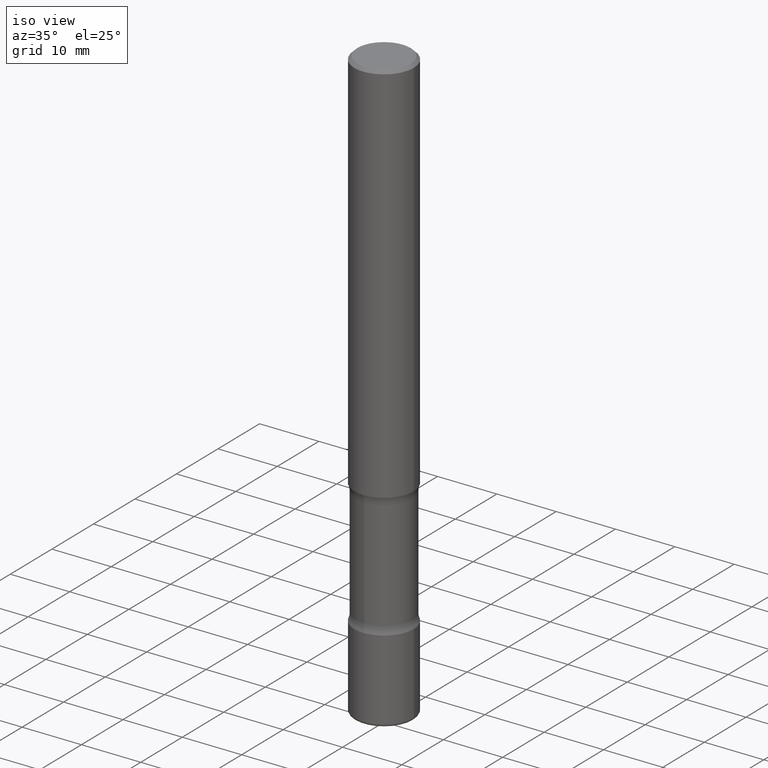
[diagram: clean part render]
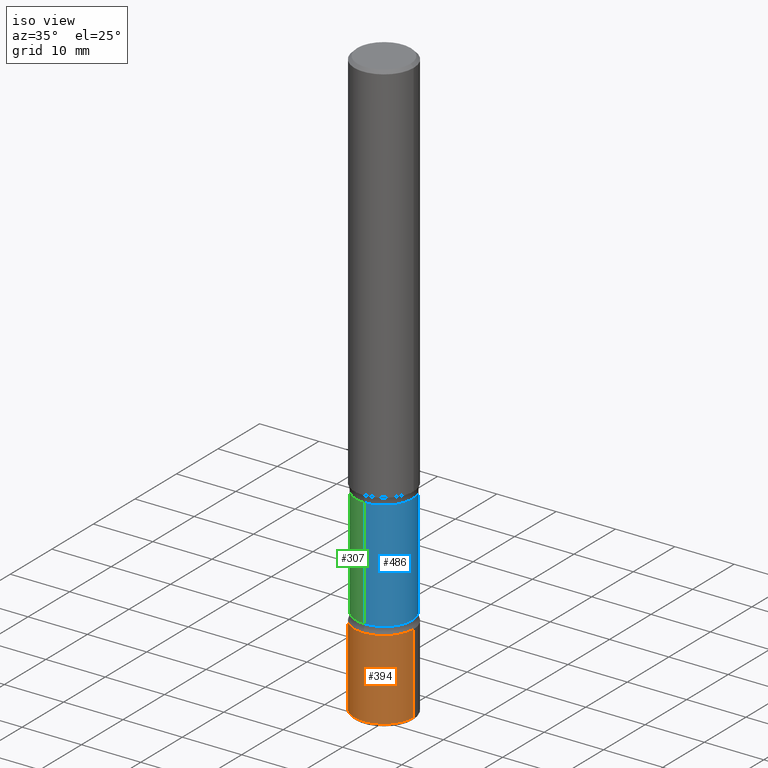
[diagram: same view with three faces highlighted in distinct colors, each labeled with its STEP entity id]
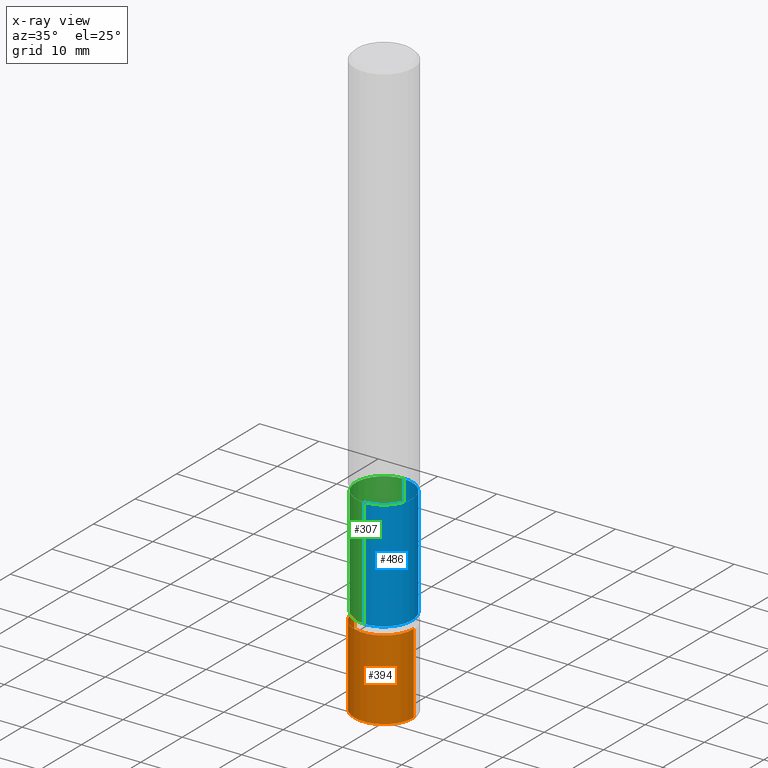
[diagram: x-ray of the same camera — body ghosted, the three highlighted faces saturated]
A machine part, iso view with three faces highlighted in distinct colors.
The next image is the same camera in x-ray (body ghosted, the three faces saturated) — at least one of them is partly hidden behind the body in this view.
Their STEP definitions:

[orange] entity #394 — the highlighted cylindrical surface (edge-blend (fillet) strip) has radius 5 mm, axis along (-0, 0, 1).
#6 = EDGE_CURVE ( 'NONE', #33, #47, #157, .T. ) ;
#8 = AXIS2_PLACEMENT_3D ( 'NONE', #251, #342, #427 ) ;
#33 = VERTEX_POINT ( 'NONE', #434 ) ;
#47 = VERTEX_POINT ( 'NONE', #225 ) ;
#86 = CARTESIAN_POINT ( 'NONE',  ( 0.000000000000000000, 0.000000000000000000, 0.000000000000000000 ) ) ;
#88 = CYLINDRICAL_SURFACE ( 'NONE', #335, 0.1968500000000001360 ) ;
#114 = VERTEX_POINT ( 'NONE', #529 ) ;
#131 = CIRCLE ( 'NONE', #186, 0.1968500000000001915 ) ;
#157 = CIRCLE ( 'NONE', #8, 0.1968500000000001082 ) ;
#168 = VERTEX_POINT ( 'NONE', #312 ) ;
#173 = EDGE_CURVE ( 'NONE', #168, #47, #493, .T. ) ;
#186 = AXIS2_PLACEMENT_3D ( 'NONE', #500, #285, #468 ) ;
#215 = DIRECTION ( 'NONE',  ( -2.445468806185136877E-29, 3.491481338843145188E-15, 1.000000000000000000 ) ) ;
#219 = CARTESIAN_POINT ( 'NONE',  ( -0.1968500000000001360, 1.398703375343758182E-15, -9.682923725166790684E-30 ) ) ;
#225 = CARTESIAN_POINT ( 'NONE',  ( 0.1968500000000001082, -1.319605372015766376E-14, -3.385799999999999699 ) ) ;
#251 = CARTESIAN_POINT ( 'NONE',  ( 8.279868283981634472E-29, -1.182145751705512057E-14, -3.385799999999999699 ) ) ;
#258 = ORIENTED_EDGE ( 'NONE', *, *, #173, .T. ) ;
#272 = DIRECTION ( 'NONE',  ( -2.445468806185136877E-29, 3.491481338843145188E-15, 1.000000000000000000 ) ) ;
#282 = EDGE_CURVE ( 'NONE', #114, #168, #131, .T. ) ;
#285 = DIRECTION ( 'NONE',  ( -2.445468806185136597E-29, 3.491481338843145583E-15, 1.000000000000000000 ) ) ;
#305 = ORIENTED_EDGE ( 'NONE', *, *, #282, .T. ) ;
#312 = CARTESIAN_POINT ( 'NONE',  ( 0.1968500000000001082, -1.505177605175279857E-14, -3.917300000000000448 ) ) ;
#335 = AXIS2_PLACEMENT_3D ( 'NONE', #86, #472, #395 ) ;
#342 = DIRECTION ( 'NONE',  ( -2.445468806185136597E-29, 3.491481338843145583E-15, 1.000000000000000000 ) ) ;
#391 = EDGE_CURVE ( 'NONE', #114, #33, #519, .T. ) ;
#394 = ADVANCED_FACE ( 'NONE', ( #470 ), #88, .T. ) ;
#395 = DIRECTION ( 'NONE',  ( 1.000000000000000000, -6.982962677686266711E-15, 4.876176775795935793E-29 ) ) ;
#405 = CARTESIAN_POINT ( 'NONE',  ( 0.1968500000000001360, -1.374596203102542594E-15, 9.598753983154306463E-30 ) ) ;
#414 = EDGE_LOOP ( 'NONE', ( #465, #305, #258, #541 ) ) ;
#427 = DIRECTION ( 'NONE',  ( 1.000000000000000000, -6.982962677686265133E-15, 0.000000000000000000 ) ) ;
#434 = CARTESIAN_POINT ( 'NONE',  ( -0.1968500000000001082, -1.135061530750893177E-14, -3.385799999999999699 ) ) ;
#465 = ORIENTED_EDGE ( 'NONE', *, *, #391, .F. ) ;
#468 = DIRECTION ( 'NONE',  ( 1.000000000000000000, -6.982962677686272233E-15, 0.000000000000000000 ) ) ;
#470 = FACE_OUTER_BOUND ( 'NONE', #414, .T. ) ;
#472 = DIRECTION ( 'NONE',  ( -2.445468806185136597E-29, 3.491481338843145583E-15, 1.000000000000000000 ) ) ;
#482 = VECTOR ( 'NONE', #272, 39.37007874015748143 ) ;
#493 = LINE ( 'NONE', #405, #482 ) ;
#500 = CARTESIAN_POINT ( 'NONE',  ( 9.579634954469036932E-29, -1.367717984865025539E-14, -3.917300000000000448 ) ) ;
#519 = LINE ( 'NONE', #219, #560 ) ;
#529 = CARTESIAN_POINT ( 'NONE',  ( -0.1968500000000001082, -1.227847647330649839E-14, -3.917300000000000448 ) ) ;
#541 = ORIENTED_EDGE ( 'NONE', *, *, #6, .F. ) ;
#560 = VECTOR ( 'NONE', #215, 39.37007874015748143 ) ;

[blue] entity #486 — the highlighted cylindrical surface (edge-blend (fillet) strip) has radius 4.7409 mm, axis along (0, -0, -1).
#18 = AXIS2_PLACEMENT_3D ( 'NONE', #241, #66, #378 ) ;
#35 = CYLINDRICAL_SURFACE ( 'NONE', #52, 0.1866500000000000381 ) ;
#46 = CARTESIAN_POINT ( 'NONE',  ( 1.303369983790223149E-15, 0.1866499999999883530, -3.336343352317408861 ) ) ;
#52 = AXIS2_PLACEMENT_3D ( 'NONE', #83, #510, #125 ) ;
#66 = DIRECTION ( 'NONE',  ( 2.591588243807108620E-29, -3.282229987566573640E-15, -1.000000000000000000 ) ) ;
#70 = CARTESIAN_POINT ( 'NONE',  ( -1.280511951283959495E-15, -0.1866500000000136661, -3.936999999999999389 ) ) ;
#71 = VERTEX_POINT ( 'NONE', #528 ) ;
#80 = CIRCLE ( 'NONE', #346, 0.1866500000000000103 ) ;
#83 = CARTESIAN_POINT ( 'NONE',  ( 9.708351723968114409E-29, -1.363062268620181708E-14, -3.937000000000000277 ) ) ;
#89 = ORIENTED_EDGE ( 'NONE', *, *, #259, .T. ) ;
#97 = DIRECTION ( 'NONE',  ( 2.591588243807108620E-29, -3.282229987566573640E-15, -1.000000000000000000 ) ) ;
#98 = CARTESIAN_POINT ( 'NONE',  ( -1.315500491072608935E-15, -0.1866500000000116399, -3.336343352317407529 ) ) ;
#124 = EDGE_CURVE ( 'NONE', #354, #136, #80, .T. ) ;
#125 = DIRECTION ( 'NONE',  ( 6.982962677686266711E-15, 1.000000000000000000, -2.927241354046892699E-15 ) ) ;
#136 = VERTEX_POINT ( 'NONE', #98 ) ;
#208 = EDGE_CURVE ( 'NONE', #520, #136, #321, .T. ) ;
#212 = VECTOR ( 'NONE', #97, 39.37007874015748143 ) ;
#217 = FACE_OUTER_BOUND ( 'NONE', #419, .T. ) ;
#233 = VECTOR ( 'NONE', #463, 39.37007874015748143 ) ;
#241 = CARTESIAN_POINT ( 'NONE',  ( 6.265314390714234203E-29, -9.270037855443396476E-15, -2.608456647682592333 ) ) ;
#259 = EDGE_CURVE ( 'NONE', #71, #520, #418, .T. ) ;
#276 = DIRECTION ( 'NONE',  ( 6.982962677686266711E-15, 1.000000000000000000, -2.927241354046893093E-15 ) ) ;
#321 = LINE ( 'NONE', #70, #233 ) ;
#346 = AXIS2_PLACEMENT_3D ( 'NONE', #448, #408, #276 ) ;
#354 = VERTEX_POINT ( 'NONE', #46 ) ;
#378 = DIRECTION ( 'NONE',  ( 6.982962677686266711E-15, 1.000000000000000000, -2.927241354046892304E-15 ) ) ;
#397 = ORIENTED_EDGE ( 'NONE', *, *, #513, .F. ) ;
#408 = DIRECTION ( 'NONE',  ( 2.591588243807108620E-29, -3.282229987566573640E-15, -1.000000000000000000 ) ) ;
#418 = CIRCLE ( 'NONE', #18, 0.1866500000000000659 ) ;
#419 = EDGE_LOOP ( 'NONE', ( #89, #461, #521, #397 ) ) ;
#442 = CARTESIAN_POINT ( 'NONE',  ( -1.315500491072630234E-15, -0.1866500000000093362, -2.608456647682591889 ) ) ;
#448 = CARTESIAN_POINT ( 'NONE',  ( 8.151697017269320442E-29, -1.165912942494680306E-14, -3.336343352317407973 ) ) ;
#452 = CARTESIAN_POINT ( 'NONE',  ( 1.303369983790238926E-15, 0.1866499999999864101, -3.937000000000000721 ) ) ;
#461 = ORIENTED_EDGE ( 'NONE', *, *, #208, .T. ) ;
#463 = DIRECTION ( 'NONE',  ( 2.591588243807108620E-29, -3.282229987566573640E-15, -1.000000000000000000 ) ) ;
#486 = ADVANCED_FACE ( 'NONE', ( #217 ), #35, .T. ) ;
#510 = DIRECTION ( 'NONE',  ( 2.591588243807108620E-29, -3.282229987566573640E-15, -1.000000000000000000 ) ) ;
#513 = EDGE_CURVE ( 'NONE', #71, #354, #527, .T. ) ;
#520 = VERTEX_POINT ( 'NONE', #442 ) ;
#521 = ORIENTED_EDGE ( 'NONE', *, *, #124, .F. ) ;
#527 = LINE ( 'NONE', #452, #212 ) ;
#528 = CARTESIAN_POINT ( 'NONE',  ( 1.303369983790204808E-15, 0.1866499999999908233, -2.608456647682592777 ) ) ;

[green] entity #307 — the highlighted cylindrical surface (edge-blend (fillet) strip) has radius 4.7409 mm, axis along (0, -0, -1).
#7 = DIRECTION ( 'NONE',  ( 2.591588243807108620E-29, -3.282229987566573640E-15, -1.000000000000000000 ) ) ;
#22 = CYLINDRICAL_SURFACE ( 'NONE', #81, 0.1866500000000000381 ) ;
#32 = DIRECTION ( 'NONE',  ( 2.591588243807108620E-29, -3.282229987566573640E-15, -1.000000000000000000 ) ) ;
#39 = EDGE_CURVE ( 'NONE', #520, #71, #194, .T. ) ;
#46 = CARTESIAN_POINT ( 'NONE',  ( 1.303369983790223149E-15, 0.1866499999999883530, -3.336343352317408861 ) ) ;
#64 = ORIENTED_EDGE ( 'NONE', *, *, #513, .T. ) ;
#70 = CARTESIAN_POINT ( 'NONE',  ( -1.280511951283959495E-15, -0.1866500000000136661, -3.936999999999999389 ) ) ;
#71 = VERTEX_POINT ( 'NONE', #528 ) ;
#81 = AXIS2_PLACEMENT_3D ( 'NONE', #333, #32, #329 ) ;
#97 = DIRECTION ( 'NONE',  ( 2.591588243807108620E-29, -3.282229987566573640E-15, -1.000000000000000000 ) ) ;
#98 = CARTESIAN_POINT ( 'NONE',  ( -1.315500491072608935E-15, -0.1866500000000116399, -3.336343352317407529 ) ) ;
#110 = AXIS2_PLACEMENT_3D ( 'NONE', #534, #7, #363 ) ;
#121 = AXIS2_PLACEMENT_3D ( 'NONE', #167, #552, #339 ) ;
#136 = VERTEX_POINT ( 'NONE', #98 ) ;
#162 = ORIENTED_EDGE ( 'NONE', *, *, #39, .T. ) ;
#167 = CARTESIAN_POINT ( 'NONE',  ( 8.151697017269320442E-29, -1.165912942494680306E-14, -3.336343352317407973 ) ) ;
#194 = CIRCLE ( 'NONE', #110, 0.1866500000000000659 ) ;
#200 = EDGE_LOOP ( 'NONE', ( #293, #162, #64, #383 ) ) ;
#208 = EDGE_CURVE ( 'NONE', #520, #136, #321, .T. ) ;
#212 = VECTOR ( 'NONE', #97, 39.37007874015748143 ) ;
#233 = VECTOR ( 'NONE', #463, 39.37007874015748143 ) ;
#262 = CIRCLE ( 'NONE', #121, 0.1866500000000000103 ) ;
#293 = ORIENTED_EDGE ( 'NONE', *, *, #208, .F. ) ;
#307 = ADVANCED_FACE ( 'NONE', ( #411 ), #22, .T. ) ;
#321 = LINE ( 'NONE', #70, #233 ) ;
#329 = DIRECTION ( 'NONE',  ( 6.982962677686266711E-15, 1.000000000000000000, -2.927241354046892699E-15 ) ) ;
#333 = CARTESIAN_POINT ( 'NONE',  ( 9.708351723968114409E-29, -1.363062268620181708E-14, -3.937000000000000277 ) ) ;
#339 = DIRECTION ( 'NONE',  ( 6.982962677686266711E-15, 1.000000000000000000, -2.927241354046893093E-15 ) ) ;
#354 = VERTEX_POINT ( 'NONE', #46 ) ;
#363 = DIRECTION ( 'NONE',  ( 6.982962677686266711E-15, 1.000000000000000000, -2.927241354046892304E-15 ) ) ;
#383 = ORIENTED_EDGE ( 'NONE', *, *, #466, .F. ) ;
#411 = FACE_OUTER_BOUND ( 'NONE', #200, .T. ) ;
#442 = CARTESIAN_POINT ( 'NONE',  ( -1.315500491072630234E-15, -0.1866500000000093362, -2.608456647682591889 ) ) ;
#452 = CARTESIAN_POINT ( 'NONE',  ( 1.303369983790238926E-15, 0.1866499999999864101, -3.937000000000000721 ) ) ;
#463 = DIRECTION ( 'NONE',  ( 2.591588243807108620E-29, -3.282229987566573640E-15, -1.000000000000000000 ) ) ;
#466 = EDGE_CURVE ( 'NONE', #136, #354, #262, .T. ) ;
#513 = EDGE_CURVE ( 'NONE', #71, #354, #527, .T. ) ;
#520 = VERTEX_POINT ( 'NONE', #442 ) ;
#527 = LINE ( 'NONE', #452, #212 ) ;
#528 = CARTESIAN_POINT ( 'NONE',  ( 1.303369983790204808E-15, 0.1866499999999908233, -2.608456647682592777 ) ) ;
#534 = CARTESIAN_POINT ( 'NONE',  ( 6.265314390714234203E-29, -9.270037855443396476E-15, -2.608456647682592333 ) ) ;
#552 = DIRECTION ( 'NONE',  ( 2.591588243807108620E-29, -3.282229987566573640E-15, -1.000000000000000000 ) ) ;